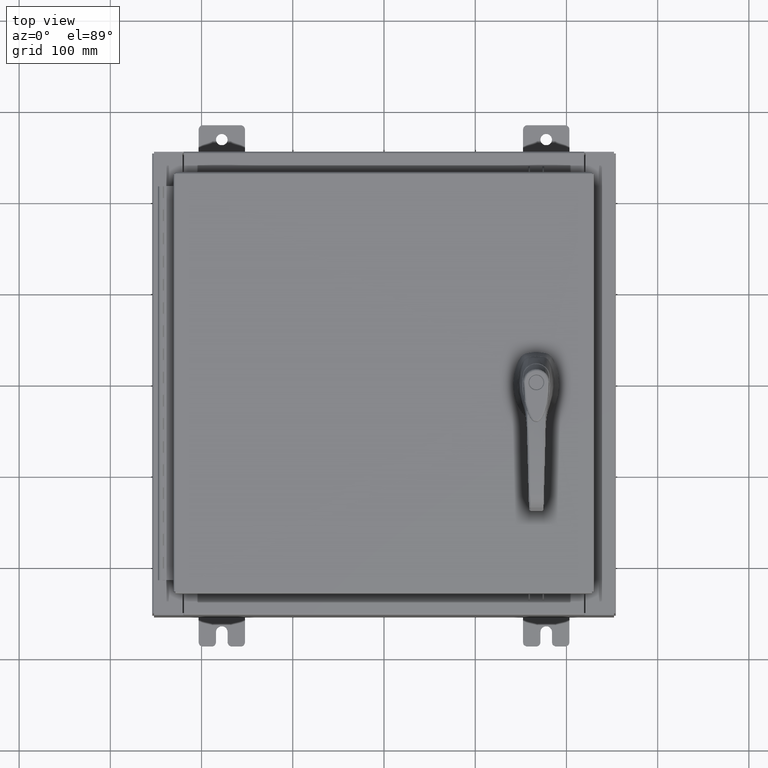
[diagram: clean part render]
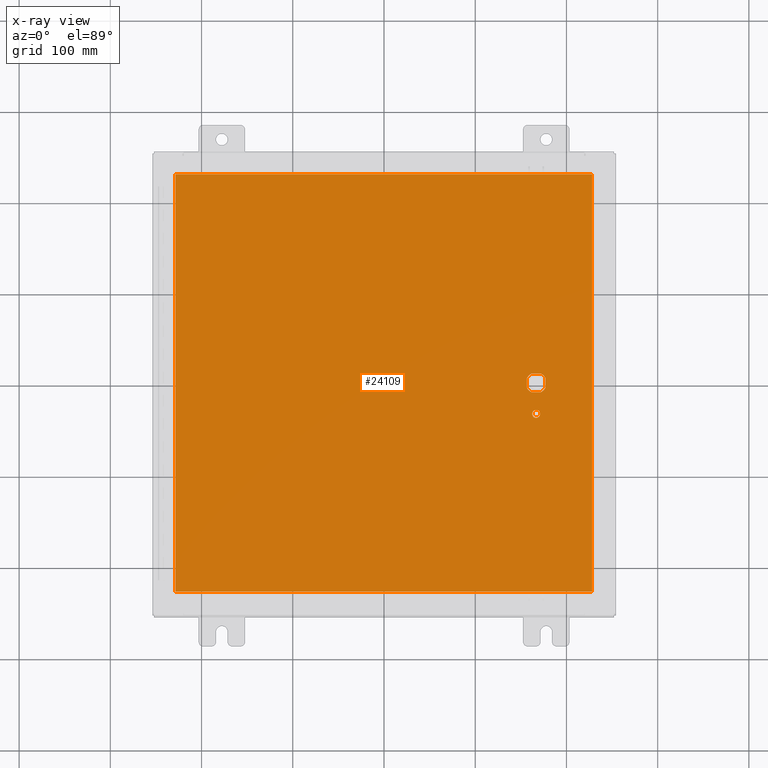
[diagram: x-ray — body ghosted, one internal face saturated and labeled with its STEP entity id]
A machine part, top view, then the same camera in x-ray: the body is ghosted and one INTERNAL B-rep face — a face not visible from any outside direction — is saturated and labeled: STEP entity #24109.
In plain terms, the highlighted planar face has unit normal (0, 0, -1).
Its self-contained STEP definition (entity closure, byte-faithful):
#147 = CARTESIAN_POINT ( 'NONE',  ( 6.577999999999999400, 0.0000000000000000000, -0.07470000000000003000 ) ) ;
#630 = VECTOR ( 'NONE', #58906, 39.37007874015748100 ) ;
#3790 = FACE_BOUND ( 'NONE', #77827, .T. ) ;
#4510 = VERTEX_POINT ( 'NONE', #69830 ) ;
#5209 = DIRECTION ( 'NONE',  ( 1.000000000000000000, -0.0000000000000000000, -0.0000000000000000000 ) ) ;
#6591 = AXIS2_PLACEMENT_3D ( 'NONE', #94942, #44382, #103361 ) ;
#7505 = VERTEX_POINT ( 'NONE', #13825 ) ;
#7532 = VERTEX_POINT ( 'NONE', #97930 ) ;
#8044 = VERTEX_POINT ( 'NONE', #40491 ) ;
#8639 = DIRECTION ( 'NONE',  ( -1.000000000000000000, 0.0000000000000000000, 0.0000000000000000000 ) ) ;
#9213 = CARTESIAN_POINT ( 'NONE',  ( 8.990299999999997700, 9.006299999999999500, -0.07470000000000000300 ) ) ;
#10420 = CARTESIAN_POINT ( 'NONE',  ( 6.577999999999999400, 0.0000000000000000000, -0.07470000000000003000 ) ) ;
#10711 = EDGE_CURVE ( 'NONE', #58134, #44142, #17434, .T. ) ;
#11770 = EDGE_LOOP ( 'NONE', ( #48268, #103645, #84337, #16380, #50035, #55636, #36558, #37361 ) ) ;
#12179 = VERTEX_POINT ( 'NONE', #76354 ) ;
#12903 = CARTESIAN_POINT ( 'NONE',  ( 6.980999999999925300, -0.2002273707563075900, -0.07470000000000003000 ) ) ;
#13825 = CARTESIAN_POINT ( 'NONE',  ( 6.377772629243690300, 0.4029999999999252000, -0.07470000000000003000 ) ) ;
#13865 = CARTESIAN_POINT ( 'NONE',  ( 6.406499999999998500, -1.338000000000000100, -0.07470000000000003000 ) ) ;
#16191 = VERTEX_POINT ( 'NONE', #108442 ) ;
#16380 = ORIENTED_EDGE ( 'NONE', *, *, #95149, .T. ) ;
#17434 = LINE ( 'NONE', #86235, #20041 ) ;
#17756 = PLANE ( 'NONE',  #46039 ) ;
#17899 = VECTOR ( 'NONE', #82203, 39.37007874015748100 ) ;
#17910 = CARTESIAN_POINT ( 'NONE',  ( 6.980999999999925300, 0.2002273707563080300, -0.07470000000000003000 ) ) ;
#18777 = VERTEX_POINT ( 'NONE', #17910 ) ;
#18891 = DIRECTION ( 'NONE',  ( -1.000000000000000000, 1.776356839400251300E-015, 0.0000000000000000000 ) ) ;
#19706 = CARTESIAN_POINT ( 'NONE',  ( 6.175000000000073500, 0.0000000000000000000, -0.07470000000000003000 ) ) ;
#20041 = VECTOR ( 'NONE', #85893, 39.37007874015748100 ) ;
#20262 = AXIS2_PLACEMENT_3D ( 'NONE', #26686, #85687, #35141 ) ;
#20407 = CARTESIAN_POINT ( 'NONE',  ( 6.778227370756309400, -0.4029999999999252000, -0.07470000000000003000 ) ) ;
#21768 = DIRECTION ( 'NONE',  ( -1.000000000000000000, 0.0000000000000000000, 0.0000000000000000000 ) ) ;
#21786 = CARTESIAN_POINT ( 'NONE',  ( -8.990299999999999500, -9.006299999999999500, -0.07470000000000021100 ) ) ;
#23034 = CIRCLE ( 'NONE', #20262, 0.4499999999999156900 ) ;
#24109 = ADVANCED_FACE ( 'NONE', ( #3790, #26241, #48648 ), #17756, .T. ) ;
#24135 = CIRCLE ( 'NONE', #45281, 0.4499999999999156900 ) ;
#24938 = ORIENTED_EDGE ( 'NONE', *, *, #41958, .F. ) ;
#25823 = VERTEX_POINT ( 'NONE', #9213 ) ;
#26241 = FACE_OUTER_BOUND ( 'NONE', #93385, .T. ) ;
#26686 = CARTESIAN_POINT ( 'NONE',  ( 6.577999999999999400, 0.0000000000000000000, -0.07470000000000003000 ) ) ;
#28977 = LINE ( 'NONE', #63784, #48749 ) ;
#29928 = VERTEX_POINT ( 'NONE', #12903 ) ;
#32005 = EDGE_CURVE ( 'NONE', #4510, #8044, #92633, .T. ) ;
#33984 = DIRECTION ( 'NONE',  ( -0.0000000000000000000, -0.0000000000000000000, 1.000000000000000000 ) ) ;
#34702 = DIRECTION ( 'NONE',  ( 0.0000000000000000000, 0.0000000000000000000, -1.000000000000000000 ) ) ;
#34825 = ORIENTED_EDGE ( 'NONE', *, *, #67379, .T. ) ;
#35141 = DIRECTION ( 'NONE',  ( -1.000000000000000000, 0.0000000000000000000, 0.0000000000000000000 ) ) ;
#36558 = ORIENTED_EDGE ( 'NONE', *, *, #87414, .T. ) ;
#37361 = ORIENTED_EDGE ( 'NONE', *, *, #10711, .T. ) ;
#37908 = CARTESIAN_POINT ( 'NONE',  ( 6.377772629243690300, -0.4029999999999250300, -0.07470000000000003000 ) ) ;
#40091 = VECTOR ( 'NONE', #45726, 39.37007874015748100 ) ;
#40277 = LINE ( 'NONE', #73685, #17899 ) ;
#40491 = CARTESIAN_POINT ( 'NONE',  ( 6.175000000000073500, -0.2002273707563079800, -0.07470000000000003000 ) ) ;
#41958 = EDGE_CURVE ( 'NONE', #25823, #12179, #40277, .T. ) ;
#42385 = DIRECTION ( 'NONE',  ( -0.0000000000000000000, -0.0000000000000000000, 1.000000000000000000 ) ) ;
#44142 = VERTEX_POINT ( 'NONE', #20407 ) ;
#44382 = DIRECTION ( 'NONE',  ( -0.0000000000000000000, -0.0000000000000000000, 1.000000000000000000 ) ) ;
#45041 = EDGE_CURVE ( 'NONE', #18777, #29928, #85006, .T. ) ;
#45281 = AXIS2_PLACEMENT_3D ( 'NONE', #10420, #69364, #18891 ) ;
#45726 = DIRECTION ( 'NONE',  ( 2.728745808672813300E-015, -1.000000000000000000, 0.0000000000000000000 ) ) ;
#46039 = AXIS2_PLACEMENT_3D ( 'NONE', #84875, #34702, #93750 ) ;
#48268 = ORIENTED_EDGE ( 'NONE', *, *, #86063, .T. ) ;
#48621 = CARTESIAN_POINT ( 'NONE',  ( 6.778227370756309400, 0.4029999999999250300, -0.07470000000000003000 ) ) ;
#48648 = FACE_BOUND ( 'NONE', #11770, .T. ) ;
#48749 = VECTOR ( 'NONE', #21768, 39.37007874015748100 ) ;
#50035 = ORIENTED_EDGE ( 'NONE', *, *, #79428, .T. ) ;
#50153 = ORIENTED_EDGE ( 'NONE', *, *, #88855, .F. ) ;
#50426 = CARTESIAN_POINT ( 'NONE',  ( -8.990299999999997700, 9.006299999999999500, -0.07470000000000019700 ) ) ;
#52960 = VECTOR ( 'NONE', #5209, 39.37007874015748100 ) ;
#53106 = CARTESIAN_POINT ( 'NONE',  ( -8.990299999999997700, -9.006299999999999500, -0.07470000000000000300 ) ) ;
#54443 = DIRECTION ( 'NONE',  ( 0.0000000000000000000, 1.000000000000000000, 0.0000000000000000000 ) ) ;
#55636 = ORIENTED_EDGE ( 'NONE', *, *, #32005, .T. ) ;
#58134 = VERTEX_POINT ( 'NONE', #37908 ) ;
#58906 = DIRECTION ( 'NONE',  ( 0.0000000000000000000, -1.000000000000000000, 0.0000000000000000000 ) ) ;
#59150 = DIRECTION ( 'NONE',  ( -0.0000000000000000000, -0.0000000000000000000, 1.000000000000000000 ) ) ;
#62593 = LINE ( 'NONE', #50426, #630 ) ;
#62977 = ORIENTED_EDGE ( 'NONE', *, *, #95453, .T. ) ;
#63784 = CARTESIAN_POINT ( 'NONE',  ( 0.0000000000000000000, 0.4029999999999252000, -0.07470000000000003000 ) ) ;
#66000 = VECTOR ( 'NONE', #54443, 39.37007874015748100 ) ;
#67379 = EDGE_CURVE ( 'NONE', #16191, #93879, #74288, .T. ) ;
#69203 = ORIENTED_EDGE ( 'NONE', *, *, #69702, .F. ) ;
#69364 = DIRECTION ( 'NONE',  ( -0.0000000000000000000, -0.0000000000000000000, 1.000000000000000000 ) ) ;
#69672 = CIRCLE ( 'NONE', #87150, 0.4499999999999156900 ) ;
#69702 = EDGE_CURVE ( 'NONE', #78112, #7532, #75372, .T. ) ;
#69830 = CARTESIAN_POINT ( 'NONE',  ( 6.175000000000073500, 0.2002273707563080300, -0.07470000000000003000 ) ) ;
#70169 = VECTOR ( 'NONE', #79079, 39.37007874015748100 ) ;
#70660 = ORIENTED_EDGE ( 'NONE', *, *, #102473, .F. ) ;
#71016 = CARTESIAN_POINT ( 'NONE',  ( 8.990299999999999500, -9.006299999999999500, -0.07470000000000076600 ) ) ;
#71147 = AXIS2_PLACEMENT_3D ( 'NONE', #92911, #42385, #101367 ) ;
#73609 = EDGE_CURVE ( 'NONE', #18777, #103303, #69672, .T. ) ;
#73685 = CARTESIAN_POINT ( 'NONE',  ( 8.990300000000001300, 9.006299999999999500, -0.07470000000000021100 ) ) ;
#74288 = CIRCLE ( 'NONE', #77141, 0.1715000000000011500 ) ;
#75372 = LINE ( 'NONE', #21786, #52960 ) ;
#75454 = CIRCLE ( 'NONE', #6591, 0.4499999999999156900 ) ;
#76354 = CARTESIAN_POINT ( 'NONE',  ( -8.990299999999997700, 9.006299999999997800, -0.07470000000000000300 ) ) ;
#77141 = AXIS2_PLACEMENT_3D ( 'NONE', #84520, #33984, #93002 ) ;
#77827 = EDGE_LOOP ( 'NONE', ( #34825, #62977 ) ) ;
#78112 = VERTEX_POINT ( 'NONE', #53106 ) ;
#79079 = DIRECTION ( 'NONE',  ( 0.0000000000000000000, -1.000000000000000000, 0.0000000000000000000 ) ) ;
#79428 = EDGE_CURVE ( 'NONE', #7505, #4510, #23034, .T. ) ;
#82203 = DIRECTION ( 'NONE',  ( -1.000000000000000000, -0.0000000000000000000, -0.0000000000000000000 ) ) ;
#84337 = ORIENTED_EDGE ( 'NONE', *, *, #73609, .T. ) ;
#84520 = CARTESIAN_POINT ( 'NONE',  ( 6.577999999999999400, -1.338000000000000100, -0.07470000000000003000 ) ) ;
#84875 = CARTESIAN_POINT ( 'NONE',  ( 0.0000000000000000000, 0.0000000000000000000, -0.07470000000000000300 ) ) ;
#85006 = LINE ( 'NONE', #96259, #40091 ) ;
#85687 = DIRECTION ( 'NONE',  ( -0.0000000000000000000, -0.0000000000000000000, 1.000000000000000000 ) ) ;
#85893 = DIRECTION ( 'NONE',  ( 1.000000000000000000, 0.0000000000000000000, 0.0000000000000000000 ) ) ;
#86063 = EDGE_CURVE ( 'NONE', #44142, #29928, #24135, .T. ) ;
#86235 = CARTESIAN_POINT ( 'NONE',  ( 0.0000000000000000000, -0.4029999999999252000, -0.07470000000000003000 ) ) ;
#87150 = AXIS2_PLACEMENT_3D ( 'NONE', #147, #59150, #8639 ) ;
#87414 = EDGE_CURVE ( 'NONE', #8044, #58134, #75454, .T. ) ;
#88855 = EDGE_CURVE ( 'NONE', #7532, #25823, #91136, .T. ) ;
#91136 = LINE ( 'NONE', #71016, #66000 ) ;
#92633 = LINE ( 'NONE', #19706, #70169 ) ;
#92911 = CARTESIAN_POINT ( 'NONE',  ( 6.577999999999999400, -1.338000000000000100, -0.07470000000000003000 ) ) ;
#93002 = DIRECTION ( 'NONE',  ( -1.000000000000000000, 0.0000000000000000000, 0.0000000000000000000 ) ) ;
#93385 = EDGE_LOOP ( 'NONE', ( #50153, #69203, #70660, #24938 ) ) ;
#93750 = DIRECTION ( 'NONE',  ( -1.000000000000000000, 0.0000000000000000000, -0.0000000000000000000 ) ) ;
#93879 = VERTEX_POINT ( 'NONE', #13865 ) ;
#94942 = CARTESIAN_POINT ( 'NONE',  ( 6.577999999999999400, 0.0000000000000000000, -0.07470000000000003000 ) ) ;
#95149 = EDGE_CURVE ( 'NONE', #103303, #7505, #28977, .T. ) ;
#95453 = EDGE_CURVE ( 'NONE', #93879, #16191, #100175, .T. ) ;
#96259 = CARTESIAN_POINT ( 'NONE',  ( 6.980999999999925300, 1.904937449034470600E-014, -0.07470000000000003000 ) ) ;
#97930 = CARTESIAN_POINT ( 'NONE',  ( 8.990299999999999500, -9.006299999999999500, -0.07470000000000000300 ) ) ;
#100175 = CIRCLE ( 'NONE', #71147, 0.1715000000000011500 ) ;
#101367 = DIRECTION ( 'NONE',  ( -1.000000000000000000, 0.0000000000000000000, 0.0000000000000000000 ) ) ;
#102473 = EDGE_CURVE ( 'NONE', #12179, #78112, #62593, .T. ) ;
#103303 = VERTEX_POINT ( 'NONE', #48621 ) ;
#103361 = DIRECTION ( 'NONE',  ( -1.000000000000000000, 8.881784197001256300E-016, 0.0000000000000000000 ) ) ;
#103645 = ORIENTED_EDGE ( 'NONE', *, *, #45041, .F. ) ;
#108442 = CARTESIAN_POINT ( 'NONE',  ( 6.749500000000001200, -1.338000000000000100, -0.07470000000000003000 ) ) ;